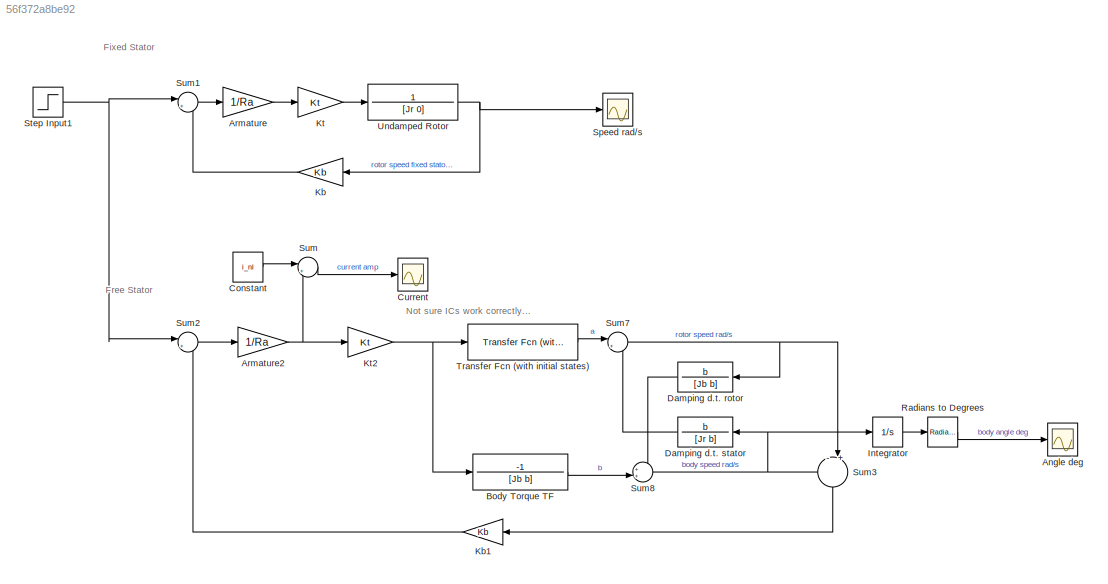
MODEL slx_56f372a8be92
KIND model
CONFIG AbsTol = auto
CONFIG EnableMultiTasking = off
CONFIG FixedStep = auto
CONFIG MaxStep = auto
CONFIG MinStep = auto
CONFIG RelTol = 1e-3
CONFIG SampleTimeConstraint = Unconstrained
CONFIG SolverName = VariableStepAuto
CONFIG StartTime = 0.0
CONFIG StopTime = 1
WORKSPACE source: mxarray member
WORKSPACE Jb = 0.004
WORKSPACE Jr = 0.00105
WORKSPACE Kb = 0.2162
WORKSPACE Kt = 0.1573
WORKSPACE Ra = 2.264
WORKSPACE b = 0.01
WORKSPACE i_nl = 0.2
WORKSPACE omega_0 = 0
WORKSPACE v_ref = 12
BLOCK [Scope] Angle deg
  Floating = off
  NumInputPorts = 2
  ScopeSpecificationString = Simulink.scopes.TimeScopeBlockCfg('CurrentConfiguration', extmgr.ConfigurationSet(extmgr.Configuration('Core','General UI',true),extmgr.Configuration('Core','Source UI',true),extmgr.Configuration('Sources','WiredSimulink',true,'DataLoggingVariableName','ScopeData2'),extmgr.Configuration('Visuals','Time Domain',true,'SerializedDisplays',{struct('MinYLimReal','-1726.31689','MaxYLimReal','191.81299',...<+1877ch>
BLOCK [Gain] Armature
  Gain = 1/Ra
BLOCK [Gain] Armature2
  Gain = 1/Ra
BLOCK [TransferFcn] Body Torque TF
  Denominator = [Jb b]
  Numerator = -1
BLOCK [Constant] Constant
  Value = i_nl
BLOCK [Scope] Current
  Floating = off
  NumInputPorts = 2
  ScopeSpecificationString = Simulink.scopes.TimeScopeBlockCfg('CurrentConfiguration', extmgr.ConfigurationSet(extmgr.Configuration('Core','General UI',true),extmgr.Configuration('Core','Source UI',true),extmgr.Configuration('Sources','WiredSimulink',true),extmgr.Configuration('Visuals','Time Domain',true,'SerializedDisplays',{struct('MinYLimReal','-0.68755','MaxYLimReal','6.18795','YLabelReal','','MinYLimMag','0.00000','MaxY...<+1826ch>
BLOCK [TransferFcn] Damping d.t. rotor
  Denominator = [Jb b]
  Numerator = b
BLOCK [TransferFcn] Damping d.t. stator
  Denominator = [Jr b]
  Numerator = b
BLOCK [Integrator] Integrator
BLOCK [Gain] Kb
  Gain = Kb
BLOCK [Gain] Kb1
  Gain = Kb
BLOCK [Gain] Kt
  Gain = Kt
BLOCK [Gain] Kt2
  Gain = Kt
BLOCK [Reference] Radians to Degrees  REF=simulink_extras/Transformations/Radians
to Degrees
  SourceBlock = simulink_extras/Transformations/Radians\nto Degrees
  SourceType = RadiansToDegrees
BLOCK [Scope] Speed rad//s
  Floating = off
  NumInputPorts = 2
  ScopeSpecificationString = Simulink.scopes.TimeScopeBlockCfg('CurrentConfiguration', extmgr.ConfigurationSet(extmgr.Configuration('Core','General UI',true),extmgr.Configuration('Core','Source UI',true),extmgr.Configuration('Sources','WiredSimulink',true,'DataLoggingVariableName','ScopeData1'),extmgr.Configuration('Visuals','Time Domain',true,'SerializedDisplays',{struct('MinYLimReal','-6.93802','MaxYLimReal','62.44214','YLa...<+1851ch>
BLOCK [Step] Step Input1
  After = v_ref
  Before = 2
  SampleTime = 0
  Time = 0
BLOCK [Sum] Sum
  Inputs = |++
BLOCK [Sum] Sum1
  Inputs = |+-
BLOCK [Sum] Sum2
  Inputs = |+-
BLOCK [Sum] Sum3
  Inputs = -|+||
  NameLocation = left
BLOCK [Sum] Sum7
  Inputs = |++
BLOCK [Sum] Sum8
  Inputs = ++|
BLOCK [Reference] Transfer Fcn (with initial states)  REF=simulink_extras/Additional
Linear/Transfer Fcn
(with initial states)
  SourceBlock = simulink_extras/Additional\nLinear/Transfer Fcn\n(with initial states)
  SourceType = Transfer Function with Initial States
BLOCK [TransferFcn] Undamped Rotor
  Denominator = [Jr 0]
  Numerator = 1
ANNOTATION (root): Fixed Stator
ANNOTATION (root): Free Stator
ANNOTATION (root): Not sure ICs work correctly...
NET Armature2:1 -> Kt2:1, Sum:2
LINE Armature:1 -> Kt:1
LINE Body Torque TF:1 -> Sum8:2
LINE Constant:1 -> Sum:1
LINE Damping d.t. rotor:1 -> Sum8:1
LINE Damping d.t. stator:1 -> Sum7:2
LINE Integrator:1 -> Radians to Degrees:1
LINE Kb1:1 -> Sum2:2
LINE Kb:1 -> Sum1:2
NET Kt2:1 -> Body Torque TF:1, Transfer Fcn (with initial states):1
LINE Kt:1 -> Undamped Rotor:1
LINE Radians to Degrees:1 -> Angle deg:1
NET Step Input1:1 -> Sum1:1, Sum2:1
LINE Sum1:1 -> Armature:1
LINE Sum2:1 -> Armature2:1
LINE Sum3:1 -> Kb1:1
NET Sum7:1 -> Damping d.t. rotor:1, Sum3:2
NET Sum8:1 -> Damping d.t. stator:1, Integrator:1, Sum3:1
LINE Sum:1 -> Current:1
LINE Transfer Fcn (with initial states):1 -> Sum7:1
NET Undamped Rotor:1 -> Kb:1, Speed rad//s:1
note: NET lines group one-source signal fan-out (src -> all destinations, sorted); 1:1 wires keep LINE
